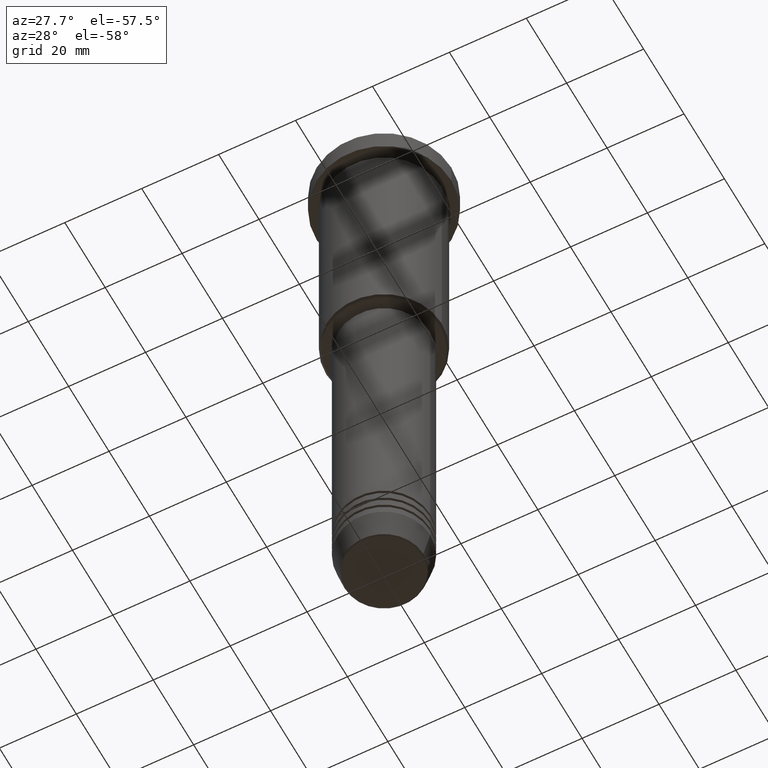
[diagram: clean part render]
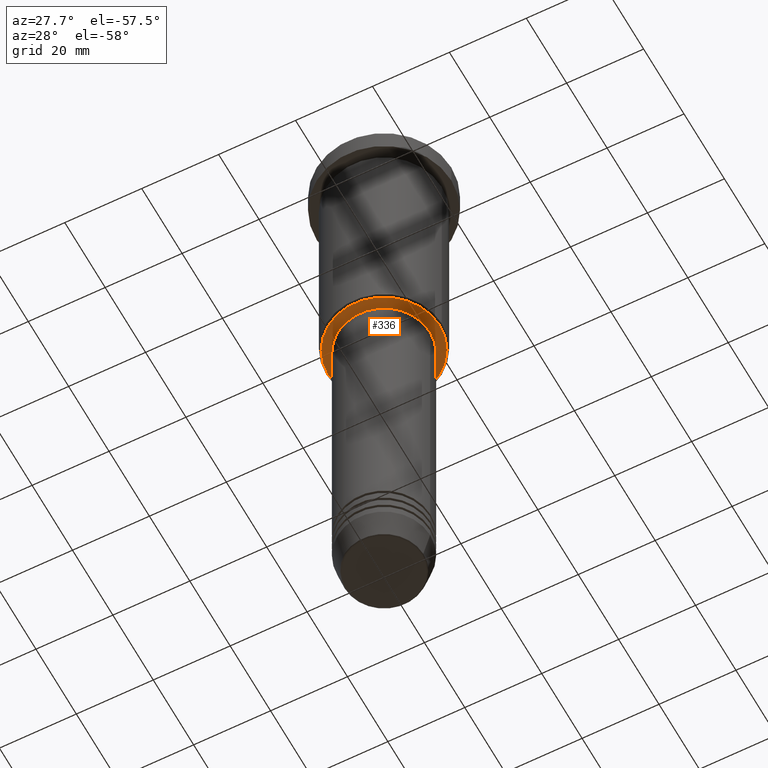
[diagram: same view with one face highlighted and labeled with its STEP entity id]
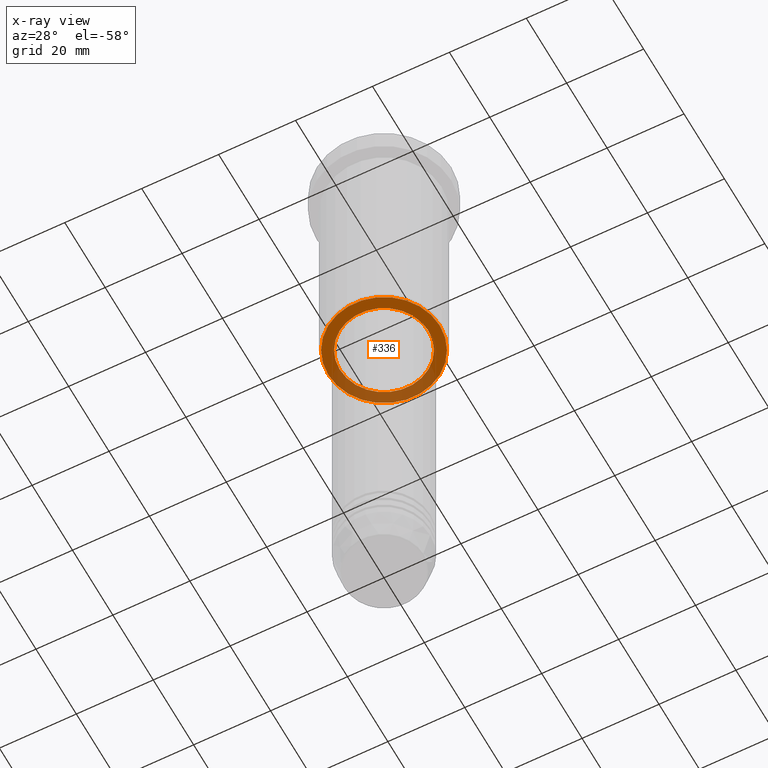
[diagram: x-ray of the same camera — body ghosted, the highlighted face saturated]
A machine part, auxiliary view. The second image highlights one B-rep face of the part: STEP entity #336.
The next image is the same camera in x-ray: the body ghosted, the highlighted face saturated — about 34% of this face is hidden behind the body in this view.
In plain terms, the highlighted planar face has unit normal (0, 0, -1).
Its self-contained STEP definition (entity closure, byte-faithful):
#7 = CIRCLE ( 'NONE', #1136, 11.50000000000000000 ) ;
#45 = FACE_BOUND ( 'NONE', #784, .T. ) ;
#64 = DIRECTION ( 'NONE',  ( 0.000000000000000000, 0.000000000000000000, -1.000000000000000000 ) ) ;
#123 = DIRECTION ( 'NONE',  ( 1.000000000000000000, 0.000000000000000000, 0.000000000000000000 ) ) ;
#157 = CIRCLE ( 'NONE', #1022, 14.49999999999998401 ) ;
#158 = CIRCLE ( 'NONE', #1006, 11.50000000000000000 ) ;
#197 = CIRCLE ( 'NONE', #1007, 14.49999999999998401 ) ;
#230 = CARTESIAN_POINT ( 'NONE',  ( -11.50000000000000000, 1.408343819019456176E-15, -65.99999999999998579 ) ) ;
#281 = DIRECTION ( 'NONE',  ( -1.000000000000000000, 0.000000000000000000, 0.000000000000000000 ) ) ;
#287 = CARTESIAN_POINT ( 'NONE',  ( 0.000000000000000000, 0.000000000000000000, -65.99999999999998579 ) ) ;
#303 = DIRECTION ( 'NONE',  ( -1.000000000000000000, 0.000000000000000000, 0.000000000000000000 ) ) ;
#323 = FACE_OUTER_BOUND ( 'NONE', #540, .T. ) ;
#336 = ADVANCED_FACE ( 'NONE', ( #323, #45 ), #706, .T. ) ;
#401 = DIRECTION ( 'NONE',  ( 0.000000000000000000, 0.000000000000000000, -1.000000000000000000 ) ) ;
#443 = CARTESIAN_POINT ( 'NONE',  ( 0.000000000000000000, 0.000000000000000000, -65.99999999999998579 ) ) ;
#449 = EDGE_CURVE ( 'NONE', #862, #453, #7, .T. ) ;
#452 = AXIS2_PLACEMENT_3D ( 'NONE', #1141, #64, #693 ) ;
#453 = VERTEX_POINT ( 'NONE', #467 ) ;
#461 = DIRECTION ( 'NONE',  ( 1.000000000000000000, 0.000000000000000000, 0.000000000000000000 ) ) ;
#467 = CARTESIAN_POINT ( 'NONE',  ( 11.50000000000000000, 0.000000000000000000, -65.99999999999998579 ) ) ;
#496 = VERTEX_POINT ( 'NONE', #1180 ) ;
#524 = CARTESIAN_POINT ( 'NONE',  ( -14.49999999999998401, 1.806354028742345013E-15, -65.99999999999998579 ) ) ;
#537 = ORIENTED_EDGE ( 'NONE', *, *, #581, .T. ) ;
#540 = EDGE_LOOP ( 'NONE', ( #701, #537 ) ) ;
#581 = EDGE_CURVE ( 'NONE', #986, #496, #157, .T. ) ;
#647 = DIRECTION ( 'NONE',  ( 0.000000000000000000, 0.000000000000000000, -1.000000000000000000 ) ) ;
#693 = DIRECTION ( 'NONE',  ( -1.000000000000000000, 0.000000000000000000, -0.000000000000000000 ) ) ;
#701 = ORIENTED_EDGE ( 'NONE', *, *, #1046, .T. ) ;
#706 = PLANE ( 'NONE',  #452 ) ;
#726 = EDGE_CURVE ( 'NONE', #453, #862, #158, .T. ) ;
#751 = CARTESIAN_POINT ( 'NONE',  ( 0.000000000000000000, 0.000000000000000000, -65.99999999999998579 ) ) ;
#772 = ORIENTED_EDGE ( 'NONE', *, *, #449, .T. ) ;
#773 = ORIENTED_EDGE ( 'NONE', *, *, #726, .T. ) ;
#784 = EDGE_LOOP ( 'NONE', ( #773, #772 ) ) ;
#862 = VERTEX_POINT ( 'NONE', #230 ) ;
#896 = DIRECTION ( 'NONE',  ( -0.000000000000000000, -0.000000000000000000, 1.000000000000000000 ) ) ;
#920 = CARTESIAN_POINT ( 'NONE',  ( 0.000000000000000000, 0.000000000000000000, -65.99999999999998579 ) ) ;
#986 = VERTEX_POINT ( 'NONE', #524 ) ;
#1006 = AXIS2_PLACEMENT_3D ( 'NONE', #287, #1019, #123 ) ;
#1007 = AXIS2_PLACEMENT_3D ( 'NONE', #920, #647, #281 ) ;
#1019 = DIRECTION ( 'NONE',  ( -0.000000000000000000, -0.000000000000000000, 1.000000000000000000 ) ) ;
#1022 = AXIS2_PLACEMENT_3D ( 'NONE', #751, #401, #303 ) ;
#1046 = EDGE_CURVE ( 'NONE', #496, #986, #197, .T. ) ;
#1136 = AXIS2_PLACEMENT_3D ( 'NONE', #443, #896, #461 ) ;
#1141 = CARTESIAN_POINT ( 'NONE',  ( 0.000000000000000000, 15.00000000000000000, -65.99999999999998579 ) ) ;
#1180 = CARTESIAN_POINT ( 'NONE',  ( 14.49999999999998401, 0.000000000000000000, -65.99999999999998579 ) ) ;